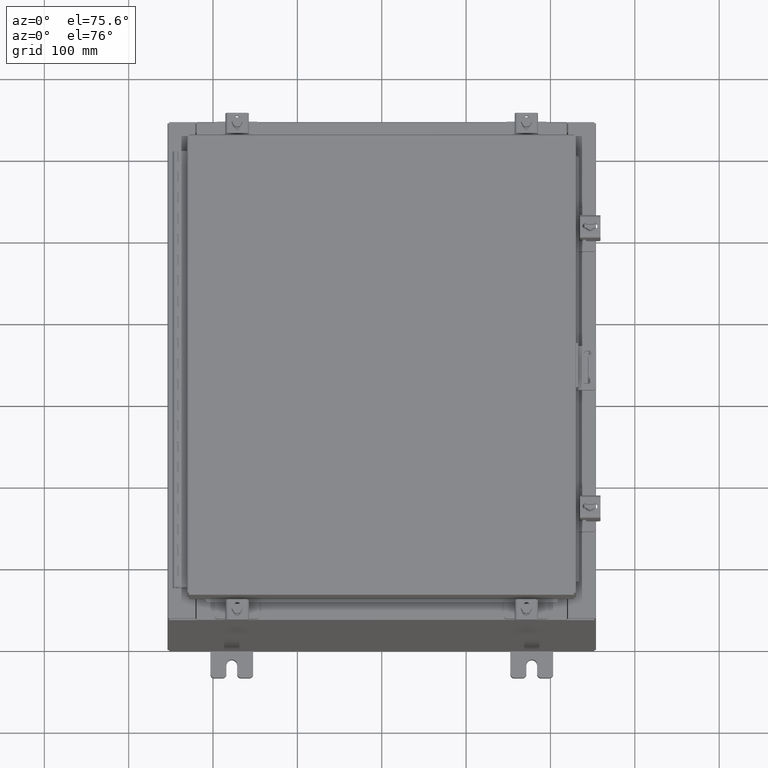
[diagram: clean part render]
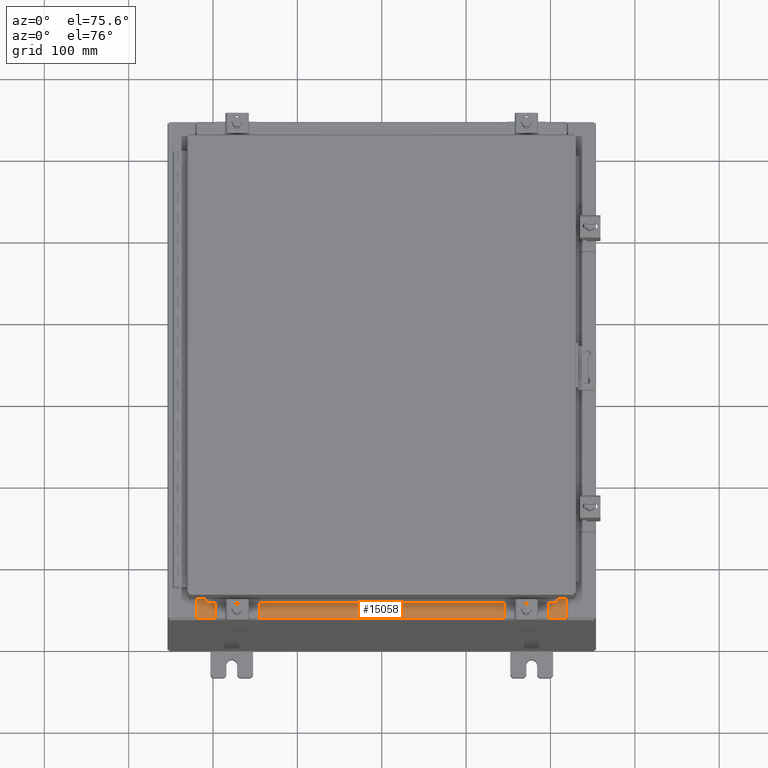
[diagram: same view with one face highlighted and labeled with its STEP entity id]
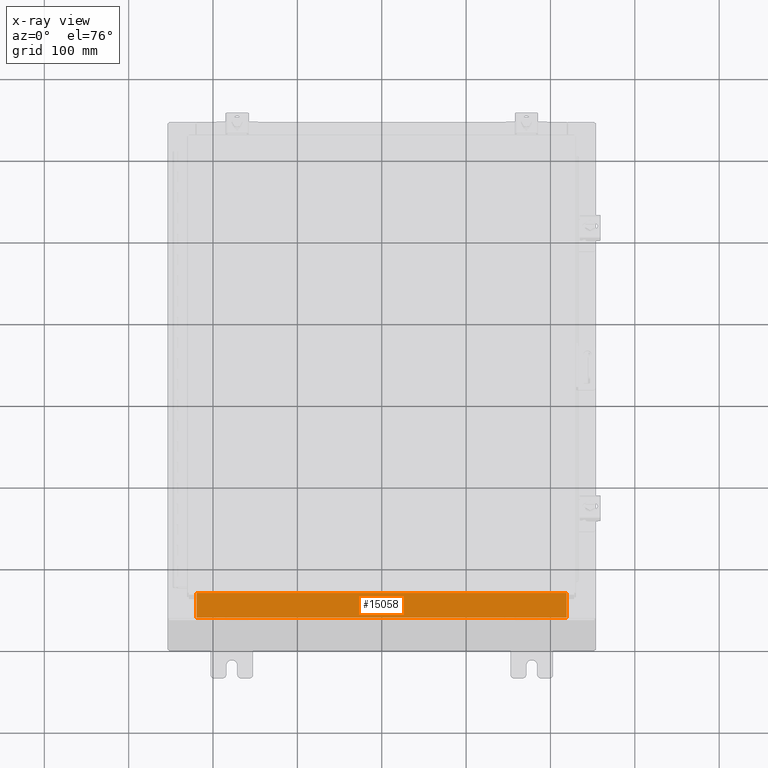
[diagram: x-ray of the same camera — body ghosted, the highlighted face saturated]
A machine part, auxiliary view. The second image highlights one B-rep face of the part: STEP entity #15058.
The next image is the same camera in x-ray: the body ghosted, the highlighted face saturated — about 0% of this face is hidden behind the body in this view.
In plain terms, the highlighted planar face has unit normal (-0, -0, 1).
Its self-contained STEP definition (entity closure, byte-faithful):
#58 = CARTESIAN_POINT ( 'NONE',  ( 8.637200000000000000, -1.287299999999999900, 3.000000000000005300 ) ) ;
#381 = VERTEX_POINT ( 'NONE', #11251 ) ;
#534 = ORIENTED_EDGE ( 'NONE', *, *, #12262, .F. ) ;
#825 = CARTESIAN_POINT ( 'NONE',  ( -2.773851121247453900E-018, -0.08770000000000000000, 3.000000000000001300 ) ) ;
#2309 = ORIENTED_EDGE ( 'NONE', *, *, #16620, .F. ) ;
#2684 = CARTESIAN_POINT ( 'NONE',  ( -8.637200000000000000, -0.08770000000000000000, 3.000000000000000900 ) ) ;
#3578 = CARTESIAN_POINT ( 'NONE',  ( -8.637200000000000000, -0.07469999999999973900, 3.000000000000000900 ) ) ;
#3603 = ORIENTED_EDGE ( 'NONE', *, *, #21588, .F. ) ;
#4294 = EDGE_CURVE ( 'NONE', #12606, #19334, #13804, .T. ) ;
#4959 = VERTEX_POINT ( 'NONE', #18627 ) ;
#7534 = DIRECTION ( 'NONE',  ( -0.0000000000000000000, -1.000000000000000000, 3.566381192773190000E-015 ) ) ;
#8009 = VECTOR ( 'NONE', #15119, 39.37007874015748100 ) ;
#10886 = DIRECTION ( 'NONE',  ( -1.000000000000000000, 3.162886113166609200E-017, -1.128005754888089100E-031 ) ) ;
#11251 = CARTESIAN_POINT ( 'NONE',  ( 8.637200000000000000, -1.287299999999999900, 3.000000000000005300 ) ) ;
#11389 = DIRECTION ( 'NONE',  ( 0.0000000000000000000, -1.000000000000000000, 3.566381192773190000E-015 ) ) ;
#12262 = EDGE_CURVE ( 'NONE', #12606, #381, #12888, .T. ) ;
#12606 = VERTEX_POINT ( 'NONE', #18785 ) ;
#12888 = LINE ( 'NONE', #30024, #32014 ) ;
#13667 = CARTESIAN_POINT ( 'NONE',  ( 0.0000000000000000000, 1.069354855923099900E-014, 3.000000000000000900 ) ) ;
#13804 = LINE ( 'NONE', #825, #26249 ) ;
#14607 = LINE ( 'NONE', #58, #8009 ) ;
#15058 = ADVANCED_FACE ( 'NONE', ( #23133 ), #18730, .T. ) ;
#15119 = DIRECTION ( 'NONE',  ( -1.000000000000000000, 0.0000000000000000000, 0.0000000000000000000 ) ) ;
#16620 = EDGE_CURVE ( 'NONE', #4959, #19334, #30135, .T. ) ;
#18627 = CARTESIAN_POINT ( 'NONE',  ( -8.637200000000000000, -1.287299999999999200, 3.000000000000005300 ) ) ;
#18730 = PLANE ( 'NONE',  #26020 ) ;
#18785 = CARTESIAN_POINT ( 'NONE',  ( 8.637200000000000000, -0.08769999999999965300, 3.000000000000000900 ) ) ;
#19332 = EDGE_LOOP ( 'NONE', ( #2309, #3603, #534, #23476 ) ) ;
#19334 = VERTEX_POINT ( 'NONE', #2684 ) ;
#21588 = EDGE_CURVE ( 'NONE', #381, #4959, #14607, .T. ) ;
#23133 = FACE_OUTER_BOUND ( 'NONE', #19332, .T. ) ;
#23422 = VECTOR ( 'NONE', #31126, 39.37007874015748100 ) ;
#23476 = ORIENTED_EDGE ( 'NONE', *, *, #4294, .T. ) ;
#26020 = AXIS2_PLACEMENT_3D ( 'NONE', #13667, #26270, #11389 ) ;
#26249 = VECTOR ( 'NONE', #10886, 39.37007874015748100 ) ;
#26270 = DIRECTION ( 'NONE',  ( 0.0000000000000000000, 3.566381192773190000E-015, 1.000000000000000000 ) ) ;
#30024 = CARTESIAN_POINT ( 'NONE',  ( 8.637200000000000000, -1.300299999999999800, 3.000000000000005300 ) ) ;
#30135 = LINE ( 'NONE', #3578, #23422 ) ;
#31126 = DIRECTION ( 'NONE',  ( -0.0000000000000000000, 1.000000000000000000, -3.566381192773190000E-015 ) ) ;
#32014 = VECTOR ( 'NONE', #7534, 39.37007874015748100 ) ;